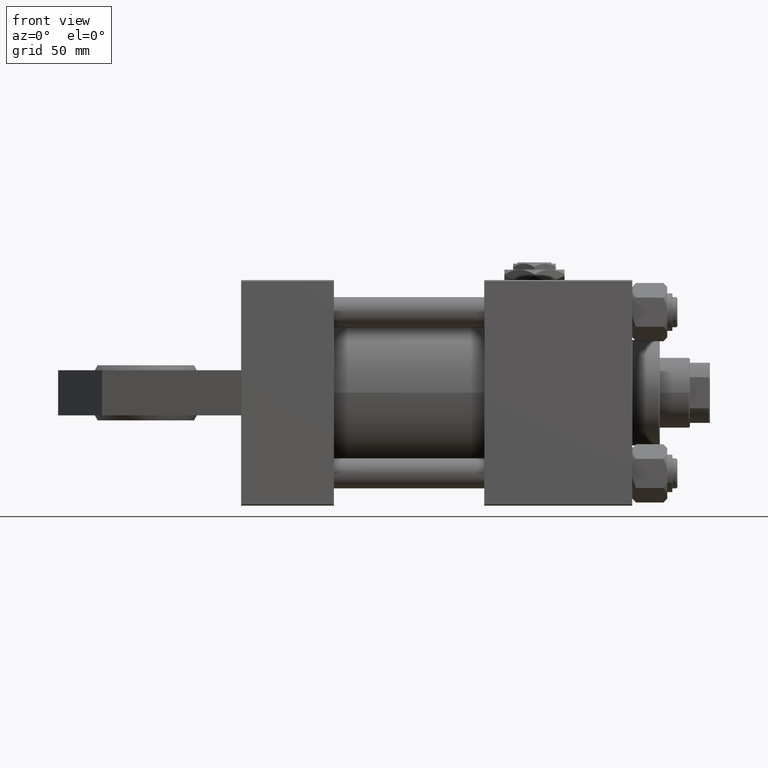
[diagram: clean part render]
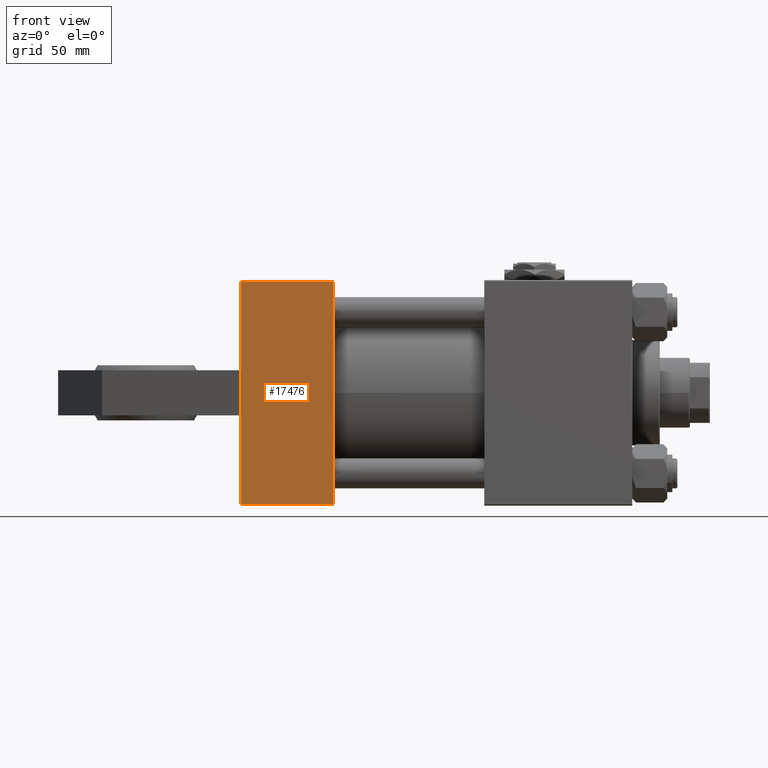
[diagram: same view with one face highlighted and labeled with its STEP entity id]
A machine part, front view. The second image highlights one B-rep face of the part: STEP entity #17476.
In plain terms, the highlighted planar face has unit normal (0, 1, 0).
Its self-contained STEP definition (entity closure, byte-faithful):
#2707 = AXIS2_PLACEMENT_3D ( 'NONE', #19084, #47698, #3605 ) ;
#3605 = DIRECTION ( 'NONE',  ( 0.000000000000000000, 1.000000000000000000, 1.541976423090495633E-16 ) ) ;
#3868 = EDGE_CURVE ( 'NONE', #43505, #51490, #9285, .T. ) ;
#7400 = CARTESIAN_POINT ( 'NONE',  ( 37.00000000000000000, -44.49999999999995737, 45.00000000000000000 ) ) ;
#7632 = EDGE_CURVE ( 'NONE', #10898, #25839, #26455, .T. ) ;
#8354 = VECTOR ( 'NONE', #15173, 1000.000000000000000 ) ;
#9285 = LINE ( 'NONE', #48914, #38402 ) ;
#10898 = VERTEX_POINT ( 'NONE', #41227 ) ;
#11603 = EDGE_CURVE ( 'NONE', #36358, #25839, #22885, .T. ) ;
#11634 = DIRECTION ( 'NONE',  ( 0.000000000000000000, -1.000000000000000000, -1.541976423090495387E-16 ) ) ;
#12476 = CARTESIAN_POINT ( 'NONE',  ( 0.000000000000000000, 44.99999999999998579, 45.00000000000001421 ) ) ;
#13604 = ORIENTED_EDGE ( 'NONE', *, *, #7632, .F. ) ;
#14405 = CARTESIAN_POINT ( 'NONE',  ( 37.00000000000000000, 44.99999999999998579, 45.00000000000001421 ) ) ;
#15173 = DIRECTION ( 'NONE',  ( 0.000000000000000000, -1.000000000000000000, -1.541976423090495387E-16 ) ) ;
#15852 = VERTEX_POINT ( 'NONE', #47872 ) ;
#16334 = VECTOR ( 'NONE', #39929, 1000.000000000000000 ) ;
#17476 = ADVANCED_FACE ( 'NONE', ( #51893 ), #31687, .F. ) ;
#19084 = CARTESIAN_POINT ( 'NONE',  ( 37.00000000000000000, 44.99999999999998579, 45.00000000000001421 ) ) ;
#19487 = LINE ( 'NONE', #22920, #26473 ) ;
#19973 = LINE ( 'NONE', #31799, #16334 ) ;
#20473 = EDGE_CURVE ( 'NONE', #15852, #51490, #24776, .T. ) ;
#20840 = DIRECTION ( 'NONE',  ( 0.000000000000000000, -1.000000000000000000, -1.541976423090495387E-16 ) ) ;
#21727 = EDGE_LOOP ( 'NONE', ( #35822, #30358, #48537, #22781, #13604, #30155 ) ) ;
#22781 = ORIENTED_EDGE ( 'NONE', *, *, #11603, .T. ) ;
#22885 = LINE ( 'NONE', #26820, #38686 ) ;
#22920 = CARTESIAN_POINT ( 'NONE',  ( 0.000000000000000000, 44.99999999999998579, 45.00000000000001421 ) ) ;
#23649 = VECTOR ( 'NONE', #20840, 1000.000000000000000 ) ;
#24776 = LINE ( 'NONE', #12476, #23649 ) ;
#25839 = VERTEX_POINT ( 'NONE', #7400 ) ;
#26455 = LINE ( 'NONE', #14405, #8354 ) ;
#26473 = VECTOR ( 'NONE', #11634, 1000.000000000000000 ) ;
#26817 = EDGE_CURVE ( 'NONE', #10898, #15852, #19973, .T. ) ;
#26820 = CARTESIAN_POINT ( 'NONE',  ( 37.00000000000000000, -44.49999999999998579, 45.00000000000000000 ) ) ;
#27421 = CARTESIAN_POINT ( 'NONE',  ( 0.000000000000000000, 9.000000000000000000, 45.00000000000000000 ) ) ;
#30155 = ORIENTED_EDGE ( 'NONE', *, *, #26817, .T. ) ;
#30358 = ORIENTED_EDGE ( 'NONE', *, *, #3868, .F. ) ;
#31687 = PLANE ( 'NONE',  #2707 ) ;
#31799 = CARTESIAN_POINT ( 'NONE',  ( 0.000000000000000000, 44.49999999999998579, 45.00000000000001421 ) ) ;
#33149 = EDGE_CURVE ( 'NONE', #43505, #36358, #19487, .T. ) ;
#35822 = ORIENTED_EDGE ( 'NONE', *, *, #20473, .T. ) ;
#36358 = VERTEX_POINT ( 'NONE', #38887 ) ;
#38402 = VECTOR ( 'NONE', #44205, 1000.000000000000000 ) ;
#38686 = VECTOR ( 'NONE', #42081, 1000.000000000000000 ) ;
#38887 = CARTESIAN_POINT ( 'NONE',  ( 0.000000000000000000, -44.49999999999995737, 45.00000000000000000 ) ) ;
#39929 = DIRECTION ( 'NONE',  ( -1.000000000000000000, 0.000000000000000000, 0.000000000000000000 ) ) ;
#41227 = CARTESIAN_POINT ( 'NONE',  ( 37.00000000000000000, 44.49999999999998579, 45.00000000000001421 ) ) ;
#42081 = DIRECTION ( 'NONE',  ( 1.000000000000000000, 0.000000000000000000, 0.000000000000000000 ) ) ;
#42320 = CARTESIAN_POINT ( 'NONE',  ( 0.000000000000000000, -9.000000000000000000, 45.00000000000000000 ) ) ;
#43505 = VERTEX_POINT ( 'NONE', #42320 ) ;
#44205 = DIRECTION ( 'NONE',  ( 0.000000000000000000, 1.000000000000000000, 0.000000000000000000 ) ) ;
#47698 = DIRECTION ( 'NONE',  ( 0.000000000000000000, 1.541976423090495633E-16, -1.000000000000000000 ) ) ;
#47872 = CARTESIAN_POINT ( 'NONE',  ( 0.000000000000000000, 44.49999999999998579, 45.00000000000001421 ) ) ;
#48537 = ORIENTED_EDGE ( 'NONE', *, *, #33149, .T. ) ;
#48914 = CARTESIAN_POINT ( 'NONE',  ( 0.000000000000000000, -9.000000000000000000, 45.00000000000000000 ) ) ;
#51490 = VERTEX_POINT ( 'NONE', #27421 ) ;
#51893 = FACE_OUTER_BOUND ( 'NONE', #21727, .T. ) ;